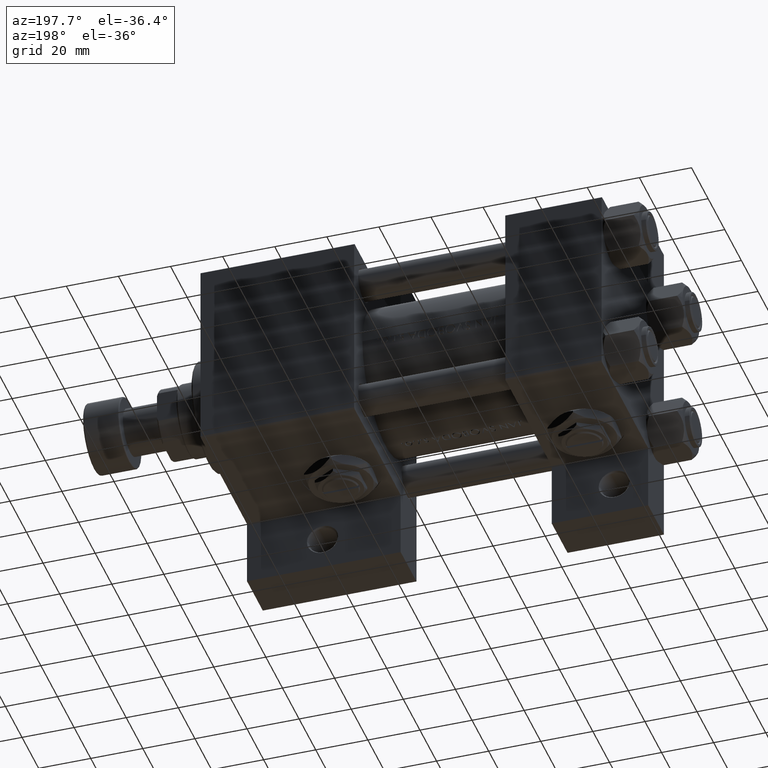
[diagram: clean part render]
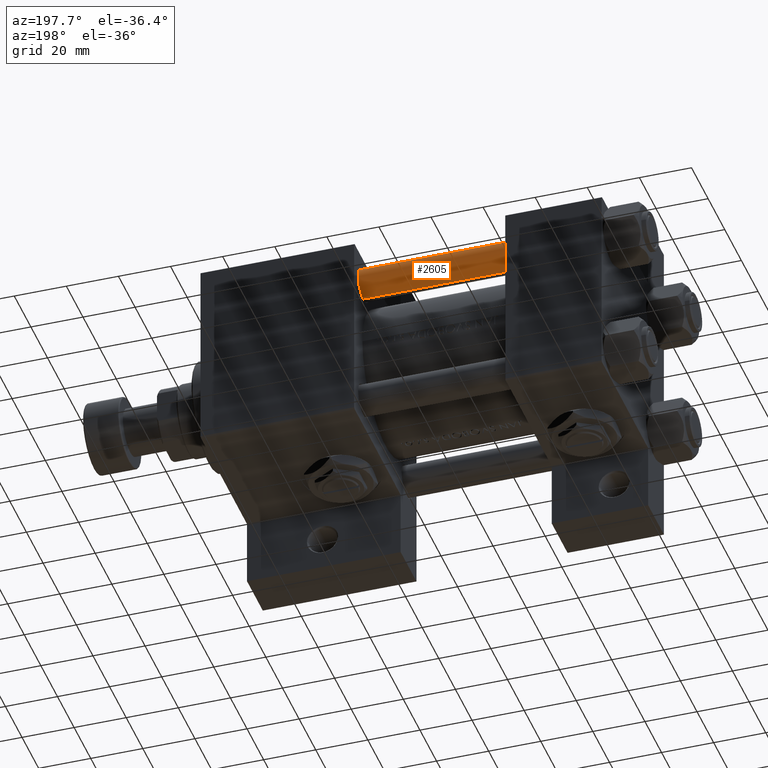
[diagram: same view with one face highlighted and labeled with its STEP entity id]
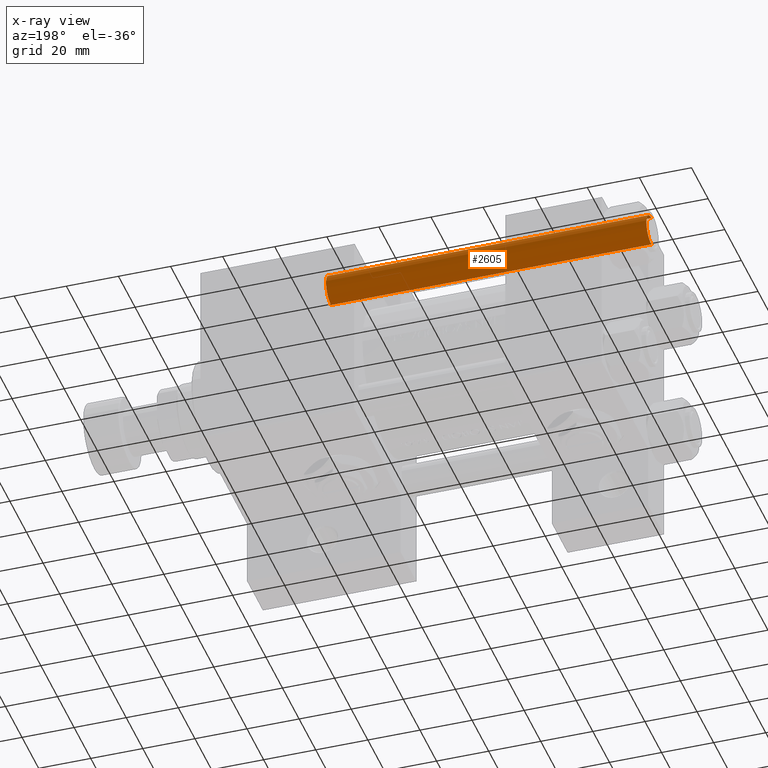
[diagram: x-ray of the same camera — body ghosted, the highlighted face saturated]
A machine part, auxiliary view. The second image highlights one B-rep face of the part: STEP entity #2605.
The next image is the same camera in x-ray: the body ghosted, the highlighted face saturated — about 0% of this face is hidden behind the body in this view.
In plain terms, the highlighted cylindrical surface (edge-blend (fillet) strip) has radius 6 mm, axis along (-1, -0, -0).
Its self-contained STEP definition (entity closure, byte-faithful):
#397 = VECTOR ( 'NONE', #37314, 1000.000000000000000 ) ;
#861 = ORIENTED_EDGE ( 'NONE', *, *, #30724, .T. ) ;
#1000 = LINE ( 'NONE', #47053, #20915 ) ;
#2465 = CARTESIAN_POINT ( 'NONE',  ( -6.000000000000000888, 0.000000000000000000, 123.5000000000000426 ) ) ;
#2605 = ADVANCED_FACE ( 'NONE', ( #26585 ), #45073, .T. ) ;
#2937 = CARTESIAN_POINT ( 'NONE',  ( -6.000000000000000888, 0.000000000000000000, 124.0000000000000000 ) ) ;
#4986 = CIRCLE ( 'NONE', #49435, 6.000000000000000888 ) ;
#8712 = DIRECTION ( 'NONE',  ( 1.000000000000000000, 0.000000000000000000, 0.000000000000000000 ) ) ;
#9183 = EDGE_CURVE ( 'NONE', #24802, #39678, #27664, .T. ) ;
#12759 = DIRECTION ( 'NONE',  ( 0.000000000000000000, 0.000000000000000000, -1.000000000000000000 ) ) ;
#15285 = EDGE_CURVE ( 'NONE', #24815, #39678, #41111, .T. ) ;
#18826 = VERTEX_POINT ( 'NONE', #22894 ) ;
#20915 = VECTOR ( 'NONE', #39927, 1000.000000000000000 ) ;
#21792 = DIRECTION ( 'NONE',  ( -1.000000000000000000, 0.000000000000000000, 0.000000000000000000 ) ) ;
#22044 = DIRECTION ( 'NONE',  ( -0.000000000000000000, -0.000000000000000000, -1.000000000000000000 ) ) ;
#22894 = CARTESIAN_POINT ( 'NONE',  ( 6.000000000000000888, 7.347880794884120722E-16, 123.5000000000000426 ) ) ;
#24802 = VERTEX_POINT ( 'NONE', #29772 ) ;
#24815 = VERTEX_POINT ( 'NONE', #2465 ) ;
#26585 = FACE_OUTER_BOUND ( 'NONE', #45351, .T. ) ;
#27293 = AXIS2_PLACEMENT_3D ( 'NONE', #37703, #22044, #21792 ) ;
#27664 = CIRCLE ( 'NONE', #38976, 6.000000000000000888 ) ;
#29772 = CARTESIAN_POINT ( 'NONE',  ( 6.000000000000000888, 7.347880794884120722E-16, 0.4999999999999865663 ) ) ;
#30724 = EDGE_CURVE ( 'NONE', #24815, #18826, #4986, .T. ) ;
#35763 = CARTESIAN_POINT ( 'NONE',  ( 0.000000000000000000, 0.000000000000000000, 123.5000000000000426 ) ) ;
#36544 = ORIENTED_EDGE ( 'NONE', *, *, #15285, .F. ) ;
#37314 = DIRECTION ( 'NONE',  ( -0.000000000000000000, -0.000000000000000000, -1.000000000000000000 ) ) ;
#37703 = CARTESIAN_POINT ( 'NONE',  ( 0.000000000000000000, 0.000000000000000000, 124.0000000000000000 ) ) ;
#38770 = ORIENTED_EDGE ( 'NONE', *, *, #48124, .T. ) ;
#38976 = AXIS2_PLACEMENT_3D ( 'NONE', #41770, #47700, #43894 ) ;
#39678 = VERTEX_POINT ( 'NONE', #42578 ) ;
#39927 = DIRECTION ( 'NONE',  ( -0.000000000000000000, -0.000000000000000000, -1.000000000000000000 ) ) ;
#41111 = LINE ( 'NONE', #2937, #397 ) ;
#41770 = CARTESIAN_POINT ( 'NONE',  ( 0.000000000000000000, 0.000000000000000000, 0.4999999999999865663 ) ) ;
#42578 = CARTESIAN_POINT ( 'NONE',  ( -6.000000000000000888, 0.000000000000000000, 0.4999999999999865663 ) ) ;
#43894 = DIRECTION ( 'NONE',  ( 1.000000000000000000, 0.000000000000000000, 0.000000000000000000 ) ) ;
#45073 = CYLINDRICAL_SURFACE ( 'NONE', #27293, 6.000000000000000888 ) ;
#45351 = EDGE_LOOP ( 'NONE', ( #861, #38770, #49465, #36544 ) ) ;
#47053 = CARTESIAN_POINT ( 'NONE',  ( 6.000000000000000888, 7.347880794884120722E-16, 124.0000000000000000 ) ) ;
#47700 = DIRECTION ( 'NONE',  ( -0.000000000000000000, -0.000000000000000000, 1.000000000000000000 ) ) ;
#48124 = EDGE_CURVE ( 'NONE', #18826, #24802, #1000, .T. ) ;
#49435 = AXIS2_PLACEMENT_3D ( 'NONE', #35763, #12759, #8712 ) ;
#49465 = ORIENTED_EDGE ( 'NONE', *, *, #9183, .T. ) ;